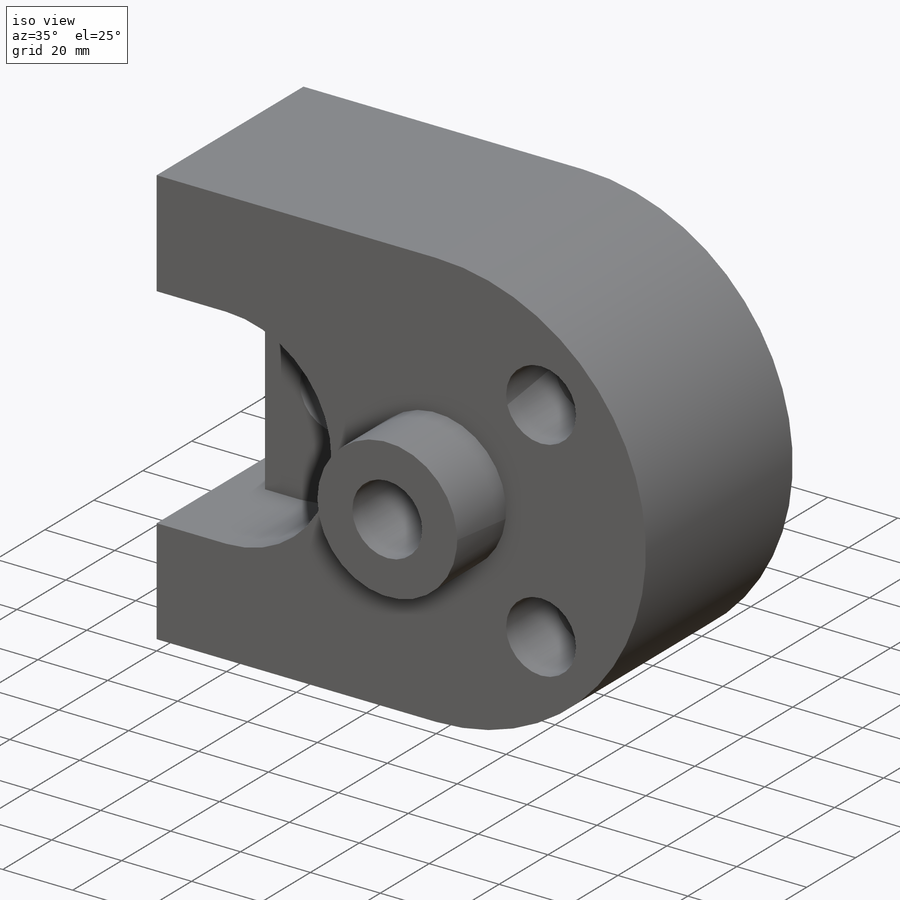
[diagram: iso view]
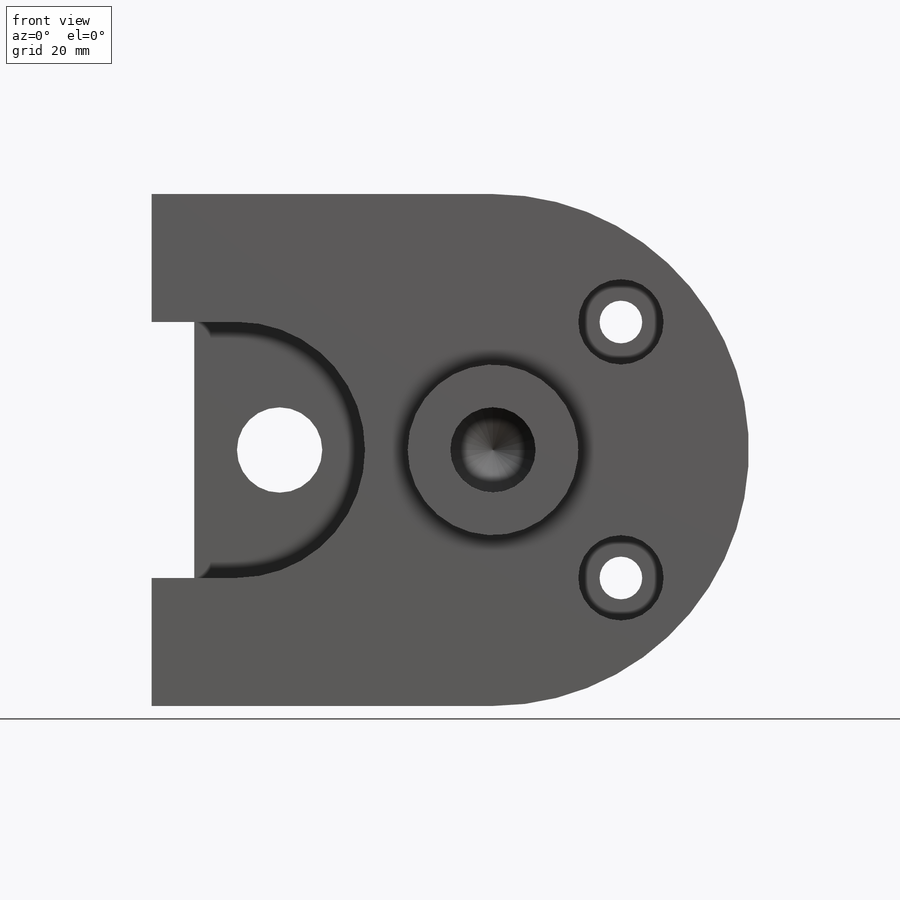
[diagram: front view]
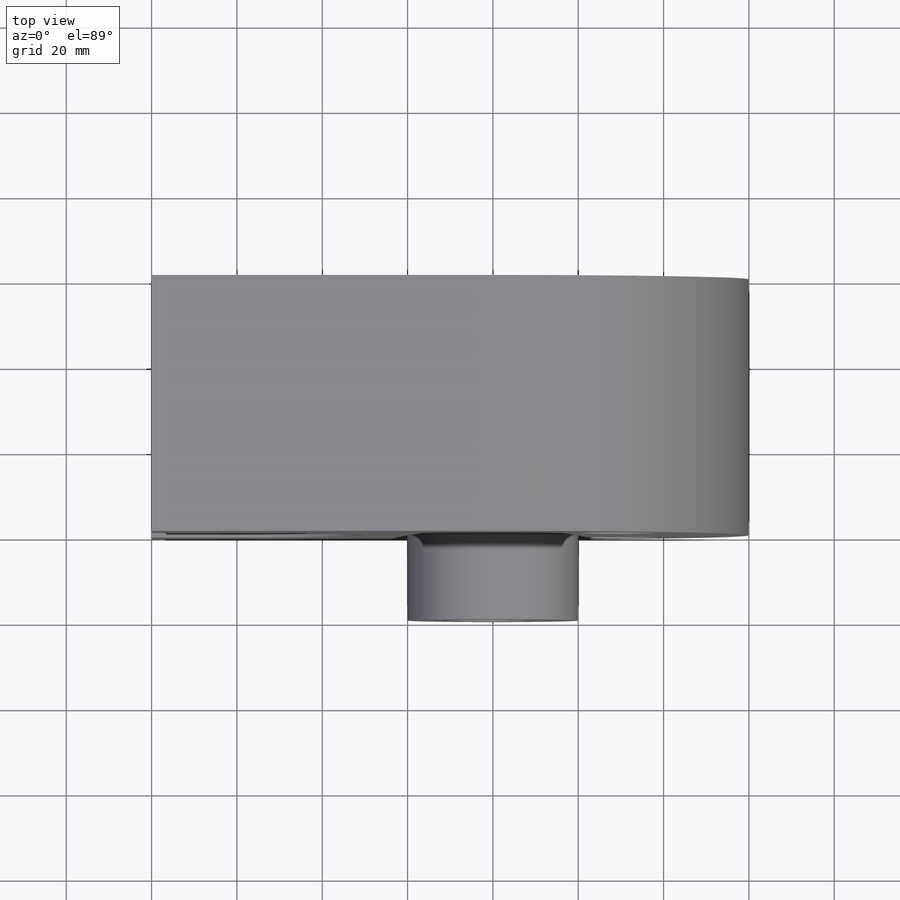
[diagram: top view]
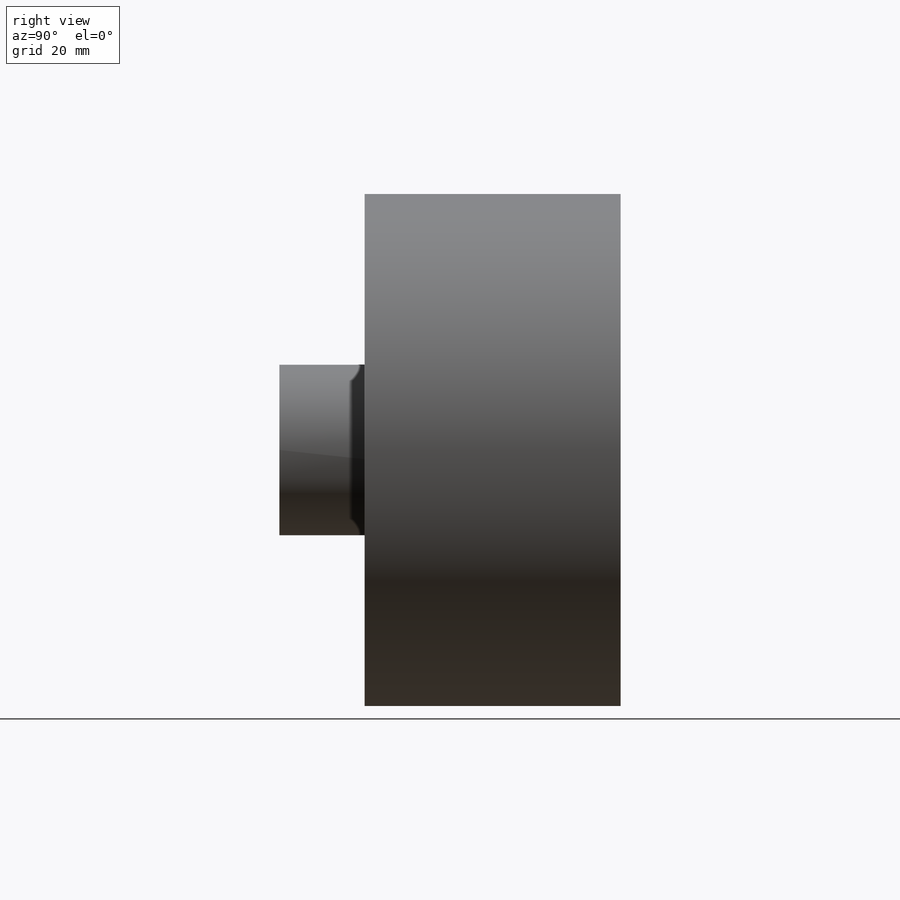
[diagram: right view]
SOLIDWORKS PART (.sldprt)
format: sldprt  version: not decoded by parser v0  size: 322,560 bytes
history: native  units: mm
features: sketch x14, cut_extrude x9, plane x3, extrude x2, material x1, hole x1 (+13 scaffold rows collapsed)
feature tree (43):
  scaffold x13  (default folders/planes/origin — collapsed)
  material  "Material <not specified>"
  sketch  "Sketch1"  dims[D1=140.0mm D2=120.0mm]
  extrude  "Boss-Extrude1"  Depth=60mm
  sketch  "Sketch2"  dims[D4=60.0mm D1=10.0mm D2=30.0mm D3=30.0mm D5=60.0mm D6=60.0mm D7=60.0mm]
  cut_extrude  "Cut-Extrude1"  Depth=60mm
  plane  "Plane1"  Offset=30mm
  sketch  "Sketch3"  dims[D1=30.0mm D2=10.0mm D3=10.0mm D4=0.0mm D5=0.0mm D6=0.0mm D7=0.0mm]
  cut_extrude  "Cut-Extrude2"  Depth=60mm
  sketch  "Sketch4"  dims[D1=20.0mm D2=30.0mm D3=20.0mm]
  cut_extrude  "Cut-Extrude3"  Depth=60mm
  plane  "Plane2"  Offset=20mm
  sketch  "Sketch5"  dims[D1=20.0mm D2=30.0mm D3=30.0mm]
  cut_extrude  "Cut-Extrude4"  Depth=60mm
  plane  "Plane3"  Offset=40mm
  sketch  "Sketch6"  dims[D1=20.0mm D2=30.0mm D3=30.0mm]
  cut_extrude  "Cut-Extrude5"  Depth=60mm
  sketch  "Sketch7"  dims[D1=10.0mm]
  cut_extrude  "Cut-Extrude6"  Depth=60mm
  sketch  "Sketch8"  dims[c1.D1=20.0mm c1.D3=10.0mm c1.D2=30.0mm c2.D3=30.0mm]
  cut_extrude  "Cut-Extrude7"  Depth=20mm
  sketch  "Sketch9"  dims[D1=10.0mm]
  cut_extrude  "Cut-Extrude8"  Depth=47mm
  sketch  "Sketch10"  dims[D1=20.0mm]
  cut_extrude  "Cut-Extrude9"  Depth=20mm
  sketch  "Sketch11"  dims[D1=40.0mm D2=80.0mm D3=0.0mm]
  extrude  "Boss-Extrude2"  Depth=20mm
  sketch  "Sketch12"
  hole  "Ø20.0mm Dowel Hole1"  Diameter=20mm Depth=30mm
  sketch  "3DSketch1"
  sketch  "Sketch13"  dims[hole-wizard template sketch: 46 standard entries collapsed; hole parameters kept: c15.Hole Dia.=20.0mm c15.Hole Depth=30.0mm c15.D3=~14.816244mm c15.Drill Angle=118.0deg]
decode coverage: 24 of 26 modeling features carry decoded parameters
note: ~ marks probable driven/reference dimensions
note: suppression state not decoded; provenance and decode notes live in map.json
